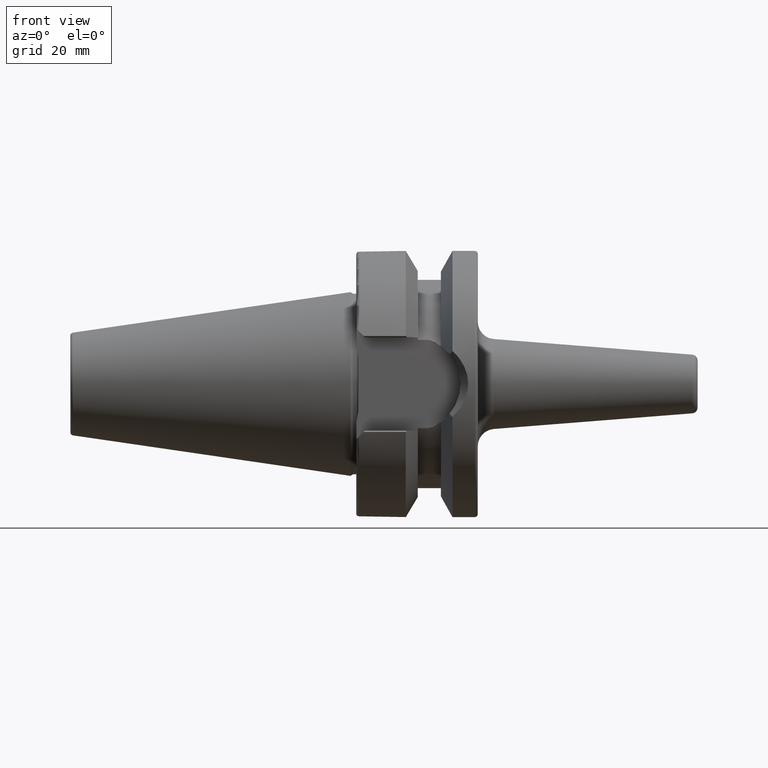
[diagram: clean part render]
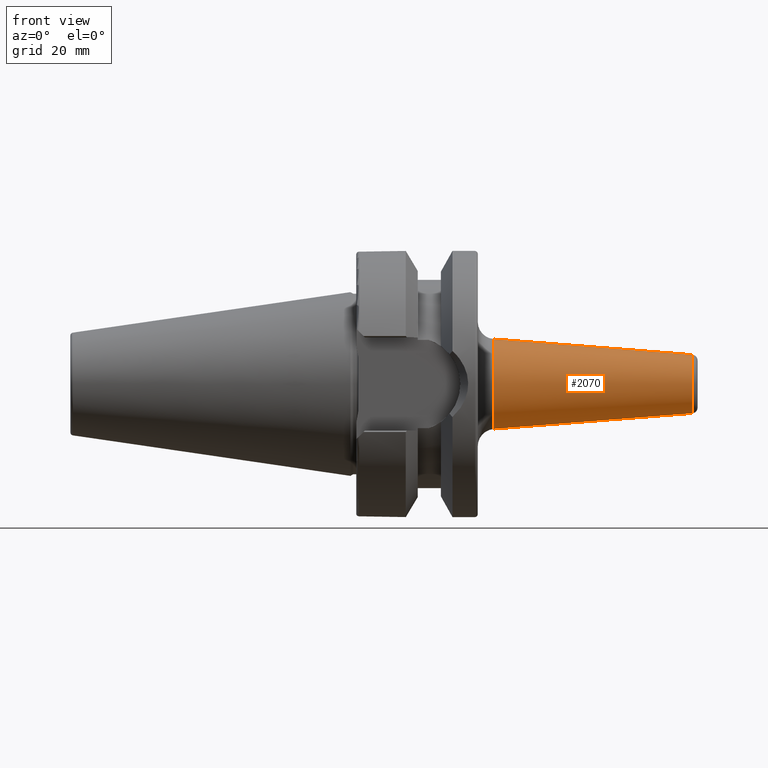
[diagram: same view with one face highlighted and labeled with its STEP entity id]
A machine part, front view. The second image highlights one B-rep face of the part: STEP entity #2070.
In plain terms, the highlighted conical surface has half-angle 4.5 deg.
Its self-contained STEP definition (entity closure, byte-faithful):
#407=DIRECTION('',(-9.969173337331E-1,0.E0,-7.845909572785E-2));
#408=VECTOR('',#407,3.441994157571E1);
#409=CARTESIAN_POINT('',(5.907845909573E1,0.E0,-5.072526842075E0));
#410=LINE('',#409,#408);
#411=DIRECTION('',(-9.969173337331E-1,0.E0,7.845909572785E-2));
#412=VECTOR('',#411,3.441994157571E1);
#413=CARTESIAN_POINT('',(5.907845909573E1,0.E0,5.072526842075E0));
#414=LINE('',#413,#412);
#415=CARTESIAN_POINT('',(5.907845909573E1,0.E0,0.E0));
#416=DIRECTION('',(-1.E0,0.E0,0.E0));
#417=DIRECTION('',(0.E0,0.E0,-1.E0));
#418=AXIS2_PLACEMENT_3D('',#415,#416,#417);
#1177=CARTESIAN_POINT('',(2.476462271282E1,0.E0,0.E0));
#1178=DIRECTION('',(-1.E0,0.E0,0.E0));
#1179=DIRECTION('',(0.E0,0.E0,-1.E0));
#1180=AXIS2_PLACEMENT_3D('',#1177,#1178,#1179);
#1407=CARTESIAN_POINT('',(5.907845909573E1,0.E0,-5.072526842075E0));
#1409=VERTEX_POINT('',#1407);
#1410=CARTESIAN_POINT('',(2.476462271282E1,0.E0,-7.773084333111E0));
#1411=VERTEX_POINT('',#1410);
#1421=CARTESIAN_POINT('',(5.907845909573E1,0.E0,5.072526842075E0));
#1423=VERTEX_POINT('',#1421);
#1424=CARTESIAN_POINT('',(2.476462271282E1,0.E0,7.773084333111E0));
#1425=VERTEX_POINT('',#1424);
#2056=CARTESIAN_POINT('',(4.192154090427E1,0.E0,0.E0));
#2057=DIRECTION('',(-1.E0,0.E0,0.E0));
#2058=DIRECTION('',(0.E0,0.E0,-1.E0));
#2059=AXIS2_PLACEMENT_3D('',#2056,#2057,#2058);
#2060=CONICAL_SURFACE('',#2059,6.422805587593E0,4.5E0);
#2062=ORIENTED_EDGE('',*,*,#2061,.T.);
#2064=ORIENTED_EDGE('',*,*,#2063,.T.);
#2066=ORIENTED_EDGE('',*,*,#2065,.F.);
#2067=ORIENTED_EDGE('',*,*,#2049,.F.);
#2068=EDGE_LOOP('',(#2062,#2064,#2066,#2067));
#2069=FACE_OUTER_BOUND('',#2068,.F.);
#2070=ADVANCED_FACE('',(#2069),#2060,.T.);
#419=CIRCLE('',#418,5.072526842075E0);
#1181=CIRCLE('',#1180,7.773084333111E0);
#2049=EDGE_CURVE('',#1409,#1423,#419,.T.);
#2061=EDGE_CURVE('',#1409,#1411,#410,.T.);
#2063=EDGE_CURVE('',#1411,#1425,#1181,.T.);
#2065=EDGE_CURVE('',#1423,#1425,#414,.T.);